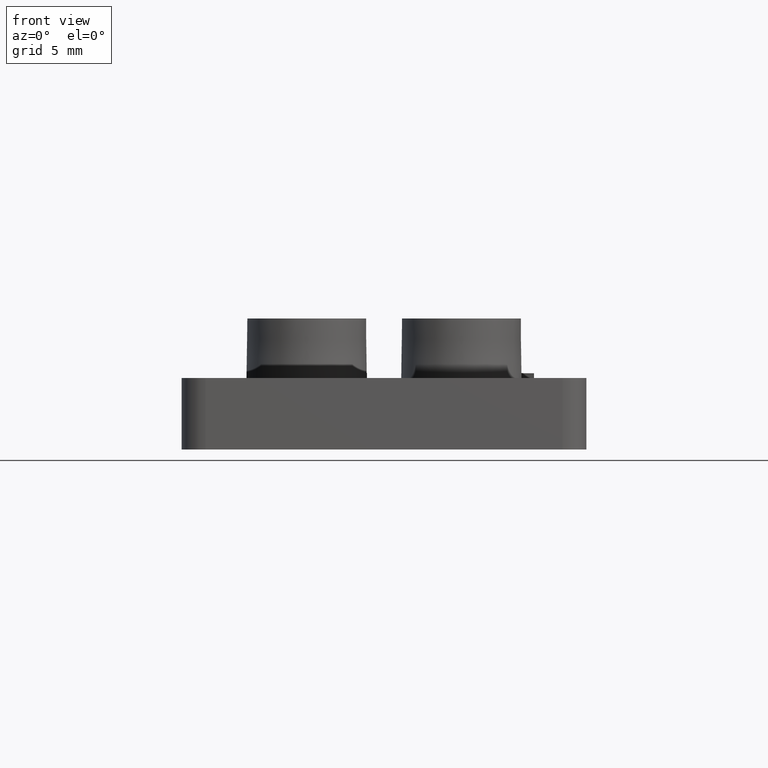
[diagram: clean part render]
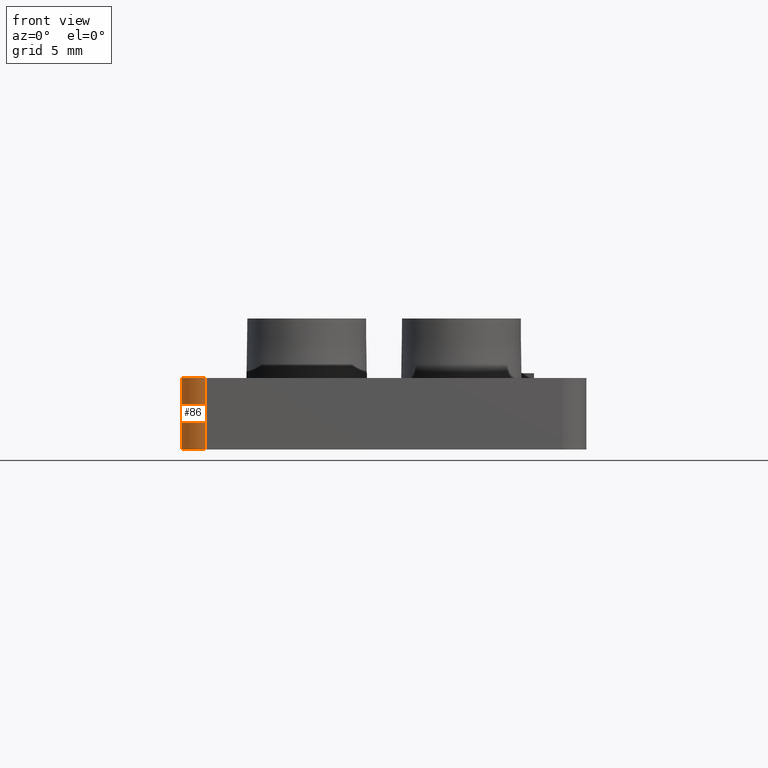
[diagram: same view with one face highlighted and labeled with its STEP entity id]
A machine part, front view. The second image highlights one B-rep face of the part: STEP entity #86.
In plain terms, the highlighted cylindrical surface (edge-blend (fillet) strip) has radius 1 mm, axis along (-0, -0, -1).
Its self-contained STEP definition (entity closure, byte-faithful):
#86 = ADVANCED_FACE( '', ( #168 ), #169, .T. );
#168 = FACE_OUTER_BOUND( '', #301, .T. );
#169 = CYLINDRICAL_SURFACE( '', #302, 1.00000000000000 );
#301 = EDGE_LOOP( '', ( #530, #531, #532, #533 ) );
#302 = AXIS2_PLACEMENT_3D( '', #534, #535, #536 );
#530 = ORIENTED_EDGE( '', *, *, #948, .F. );
#531 = ORIENTED_EDGE( '', *, *, #952, .T. );
#532 = ORIENTED_EDGE( '', *, *, #897, .T. );
#533 = ORIENTED_EDGE( '', *, *, #929, .F. );
#534 = CARTESIAN_POINT( '', ( -7.50000000000001, -11.5000000000000, -51.6702855111600 ) );
#535 = DIRECTION( '', ( -1.12139804483894E-016, -2.33178017899756E-016, -1.00000000000000 ) );
#536 = DIRECTION( '', ( -1.00000000000000, 3.57050504427178E-032, 1.12139804483894E-016 ) );
#897 = EDGE_CURVE( '', #1061, #1059, #1062, .T. );
#929 = EDGE_CURVE( '', #1119, #1059, #1122, .T. );
#948 = EDGE_CURVE( '', #1155, #1119, #1157, .T. );
#952 = EDGE_CURVE( '', #1155, #1061, #1161, .T. );
#1059 = VERTEX_POINT( '', #1319 );
#1061 = VERTEX_POINT( '', #1322 );
#1062 = CIRCLE( '', #1323, 1.00000000000000 );
#1119 = VERTEX_POINT( '', #1405 );
#1122 = LINE( '', #1409, #1410 );
#1155 = VERTEX_POINT( '', #1457 );
#1157 = CIRCLE( '', #1460, 1.00000000000000 );
#1161 = LINE( '', #1467, #1468 );
#1319 = CARTESIAN_POINT( '', ( -8.50000000000001, -11.5000000000000, 3.00000000000000 ) );
#1322 = CARTESIAN_POINT( '', ( -7.50000000000001, -12.5000000000000, 2.99999999999999 ) );
#1323 = AXIS2_PLACEMENT_3D( '', #1677, #1678, #1679 );
#1405 = CARTESIAN_POINT( '', ( -8.50000000000001, -11.5000000000000, 7.04148653447866E-016 ) );
#1409 = CARTESIAN_POINT( '', ( -8.50000000000001, -11.5000000000000, -51.6702855111600 ) );
#1410 = VECTOR( '', #1721, 1000.00000000000 );
#1457 = CARTESIAN_POINT( '', ( -7.50000000000001, -12.5000000000000, 7.65378971138986E-016 ) );
#1460 = AXIS2_PLACEMENT_3D( '', #1746, #1747, #1748 );
#1467 = CARTESIAN_POINT( '', ( -7.50000000000001, -12.5000000000000, -51.6702855111600 ) );
#1468 = VECTOR( '', #1752, 1000.00000000000 );
#1677 = CARTESIAN_POINT( '', ( -7.50000000000001, -11.5000000000000, 3.00000000000000 ) );
#1678 = DIRECTION( '', ( 0.000000000000000, -6.12303176911189E-017, -1.00000000000000 ) );
#1679 = DIRECTION( '', ( 0.000000000000000, 1.00000000000000, -6.12303176911189E-017 ) );
#1721 = DIRECTION( '', ( 1.12139804483894E-016, 2.33178017899756E-016, 1.00000000000000 ) );
#1746 = CARTESIAN_POINT( '', ( -7.50000000000001, -11.5000000000000, 7.04148653447867E-016 ) );
#1747 = DIRECTION( '', ( 0.000000000000000, -6.12303176911189E-017, -1.00000000000000 ) );
#1748 = DIRECTION( '', ( 0.000000000000000, 1.00000000000000, -6.12303176911189E-017 ) );
#1752 = DIRECTION( '', ( 1.12139804483894E-016, 2.33178017899756E-016, 1.00000000000000 ) );